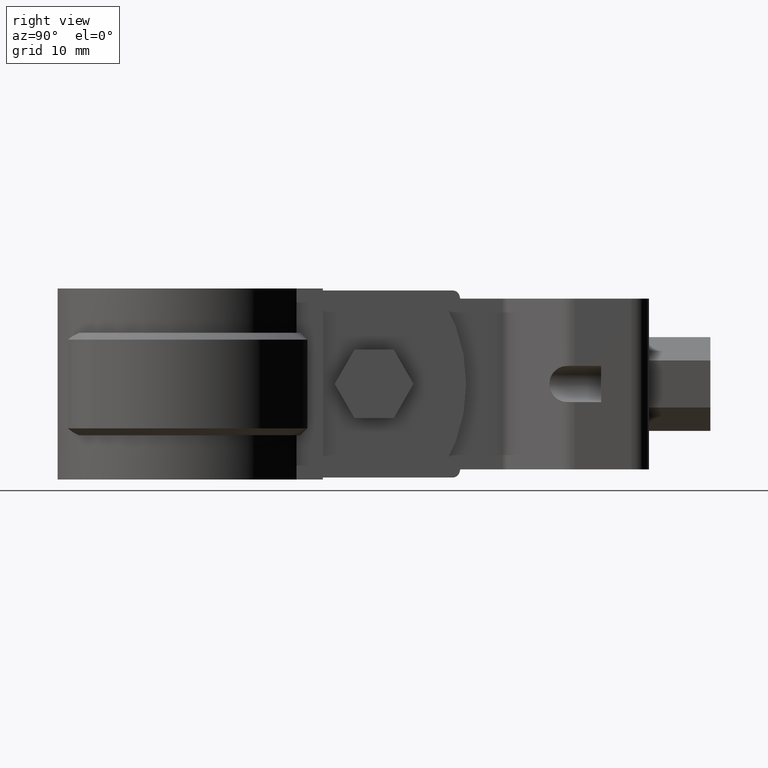
[diagram: clean part render]
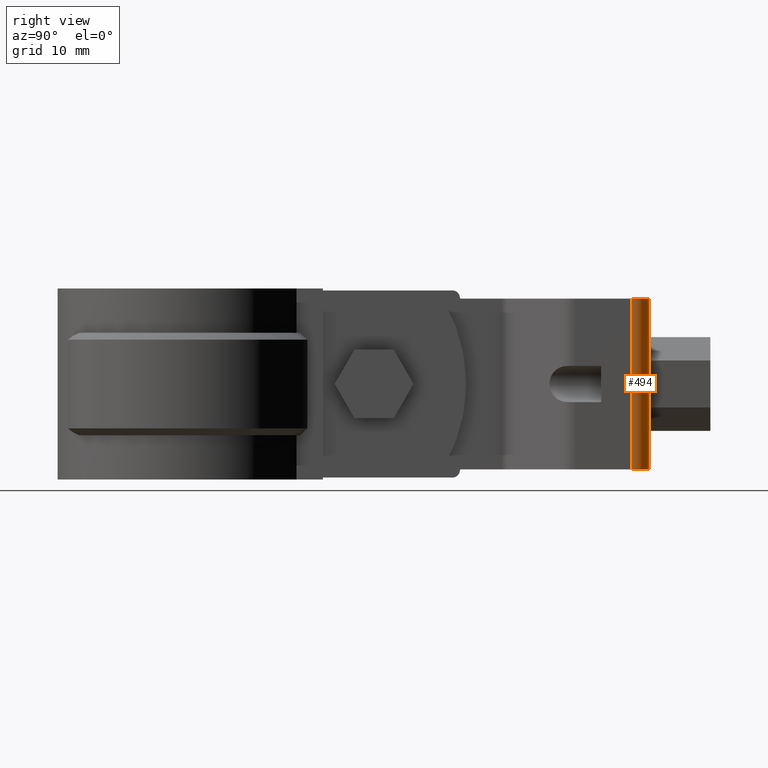
[diagram: same view with one face highlighted and labeled with its STEP entity id]
A machine part, right view. The second image highlights one B-rep face of the part: STEP entity #494.
In plain terms, the highlighted cylindrical surface (edge-blend (fillet) strip) has radius 2.6 mm, axis along (-0, -0, 1).
Its self-contained STEP definition (entity closure, byte-faithful):
#494 = ADVANCED_FACE( '', ( #960 ), #961, .T. );
#960 = FACE_OUTER_BOUND( '', #2097, .T. );
#961 = CYLINDRICAL_SURFACE( '', #2098, 2.60000000000000 );
#2097 = EDGE_LOOP( '', ( #4859, #4860, #4861, #4862 ) );
#2098 = AXIS2_PLACEMENT_3D( '', #4863, #4864, #4865 );
#4859 = ORIENTED_EDGE( '', *, *, #6867, .T. );
#4860 = ORIENTED_EDGE( '', *, *, #6868, .F. );
#4861 = ORIENTED_EDGE( '', *, *, #6815, .F. );
#4862 = ORIENTED_EDGE( '', *, *, #6855, .T. );
#4863 = CARTESIAN_POINT( '', ( 9.65000011282100, 66.0019465687963, 1.84652987345046E-008 ) );
#4864 = DIRECTION( '', ( -3.82133362428794E-011, -1.31468003150562E-010, 1.00000000000000 ) );
#4865 = DIRECTION( '', ( 7.94778790044288E-010, 1.00000000000000, 1.31468003180933E-010 ) );
#6815 = EDGE_CURVE( '', #7970, #7972, #7973, .T. );
#6855 = EDGE_CURVE( '', #7970, #8040, #8042, .T. );
#6867 = EDGE_CURVE( '', #8040, #8059, #8060, .T. );
#6868 = EDGE_CURVE( '', #7972, #8059, #8061, .T. );
#7970 = VERTEX_POINT( '', #11016 );
#7972 = VERTEX_POINT( '', #11019 );
#7973 = CIRCLE( '', #11020, 2.59999999999999 );
#8040 = VERTEX_POINT( '', #11134 );
#8042 = LINE( '', #11137, #11138 );
#8059 = VERTEX_POINT( '', #11164 );
#8060 = CIRCLE( '', #11165, 2.59999999999999 );
#8061 = LINE( '', #11166, #11167 );
#11016 = CARTESIAN_POINT( '', ( 12.2500001128210, 66.0019465667299, 1.85646498174208E-008 ) );
#11019 = CARTESIAN_POINT( '', ( 9.65000011488743, 68.6019465687963, 1.88071086482111E-008 ) );
#11020 = AXIS2_PLACEMENT_3D( '', #12884, #12885, #12886 );
#11134 = CARTESIAN_POINT( '', ( 12.2500001137763, 66.0019465700166, -24.9999999814353 ) );
#11137 = CARTESIAN_POINT( '', ( 12.2500001128210, 66.0019465667299, 1.85646498174208E-008 ) );
#11138 = VECTOR( '', #12948, 1000.00000000000 );
#11164 = CARTESIAN_POINT( '', ( 9.65000011584276, 68.6019465720830, -24.9999999811929 ) );
#11165 = AXIS2_PLACEMENT_3D( '', #12964, #12965, #12966 );
#11166 = CARTESIAN_POINT( '', ( 9.65000011488743, 68.6019465687963, 1.88071086482111E-008 ) );
#11167 = VECTOR( '', #12967, 1000.00000000000 );
#12884 = CARTESIAN_POINT( '', ( 9.65000011282100, 66.0019465687963, 1.84652987345046E-008 ) );
#12885 = DIRECTION( '', ( -3.82133362428794E-011, -1.31468003150562E-010, 1.00000000000000 ) );
#12886 = DIRECTION( '', ( 1.00000000000000, -7.94778790049312E-010, 3.82133361383914E-011 ) );
#12948 = DIRECTION( '', ( 3.82133362428794E-011, 1.31468003150562E-010, -1.00000000000000 ) );
#12964 = CARTESIAN_POINT( '', ( 9.65000011377633, 66.0019465720830, -24.9999999815347 ) );
#12965 = DIRECTION( '', ( -3.82133362428794E-011, -1.31468003150562E-010, 1.00000000000000 ) );
#12966 = DIRECTION( '', ( 1.00000000000000, -7.94778790049312E-010, 3.82133361383914E-011 ) );
#12967 = DIRECTION( '', ( 3.82133362428794E-011, 1.31468003150562E-010, -1.00000000000000 ) );